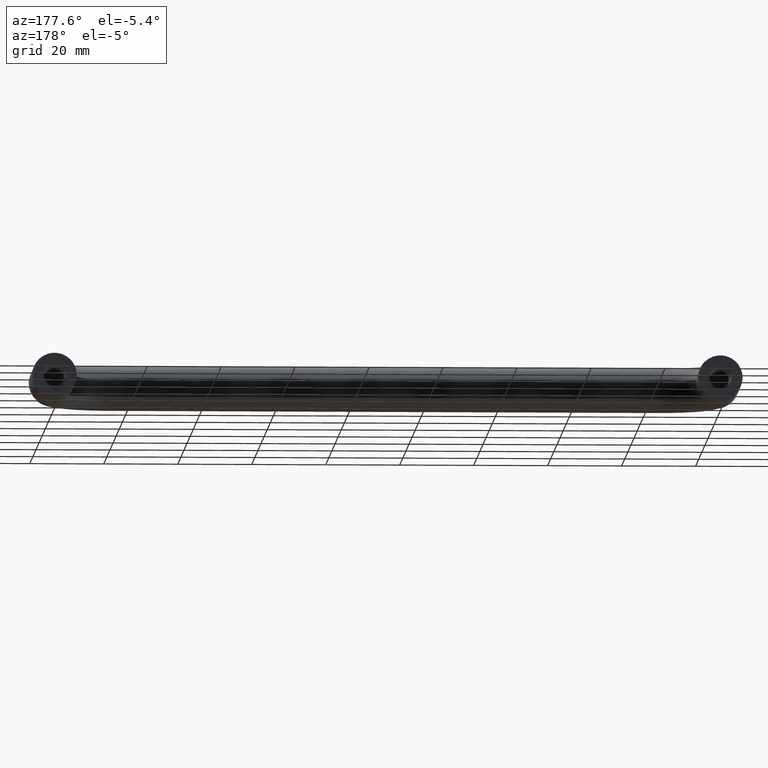
[diagram: clean part render]
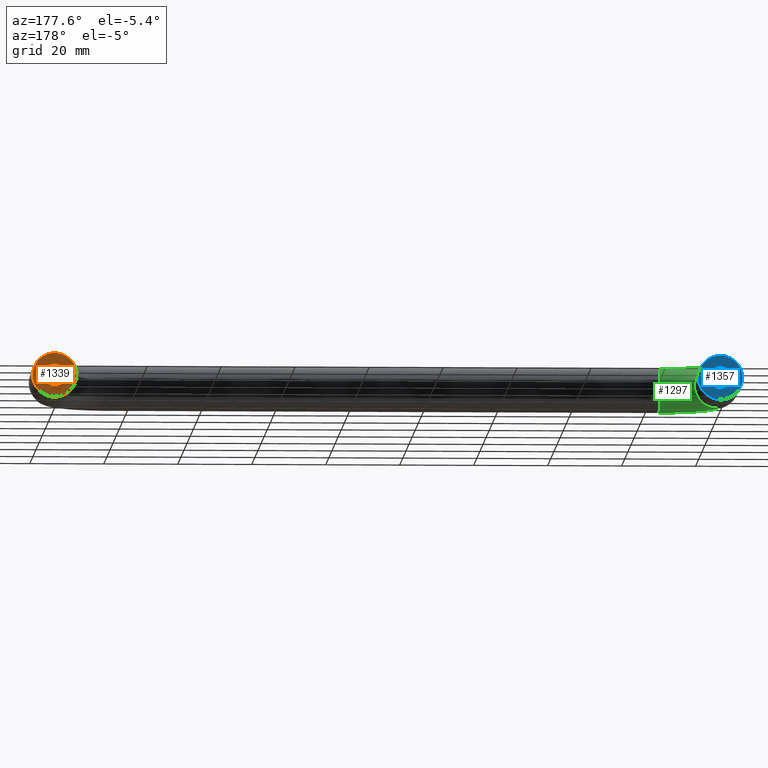
[diagram: same view with three faces highlighted in distinct colors, each labeled with its STEP entity id]
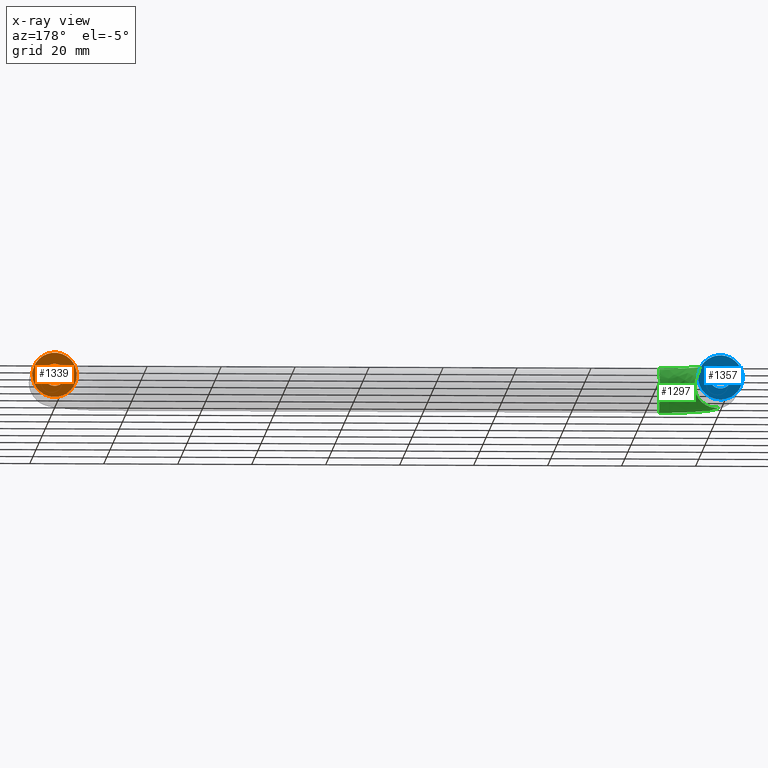
[diagram: x-ray of the same camera — body ghosted, the three highlighted faces saturated]
A machine part, auxiliary view with three faces highlighted in distinct colors.
The next image is the same camera in x-ray (body ghosted, the three faces saturated) — at least one of them is partly hidden behind the body in this view.
Their STEP definitions:

[orange] entity #1339 — the highlighted face is a freeform B-spline surface patch.
#261=CARTESIAN_POINT('',(177.009247998832790,-5.551115E-017,0.235377287592844));
#262=VERTEX_POINT('',#261);
#268=CARTESIAN_POINT('',(180.0,0.0,3.0));
#269=VERTEX_POINT('',#268);
#270=CARTESIAN_POINT('',(180.0,0.0,3.0));
#271=CARTESIAN_POINT('',(177.226828525786830,0.0,3.0));
#272=CARTESIAN_POINT('',(177.009247998832820,-5.551115E-017,0.235377287592844));
#280=(BOUNDED_CURVE()B_SPLINE_CURVE(2,(#270,#271,#272),.UNSPECIFIED.,.F.,.U.)B_SPLINE_CURVE_WITH_KNOTS((3,3),(0.0,0.236331300585845),.UNSPECIFIED.)CURVE()GEOMETRIC_REPRESENTATION_ITEM()RATIONAL_B_SPLINE_CURVE((1.0,0.723120658660169,0.969723356073894))REPRESENTATION_ITEM(''));
#281=EDGE_CURVE('',#269,#262,#280,.T.);
#283=CARTESIAN_POINT('',(182.990752001167210,-5.551115E-017,-0.235377287592843));
#284=VERTEX_POINT('',#283);
#285=CARTESIAN_POINT('',(182.990752001167120,-5.551115E-017,-0.235377287592843));
#286=CARTESIAN_POINT('',(182.999999999999970,0.0,-0.117870321434216));
#287=CARTESIAN_POINT('',(183.0,0.0,0.0));
#288=CARTESIAN_POINT('',(182.999999999999970,0.0,3.0));
#289=CARTESIAN_POINT('',(180.0,0.0,3.0));
#297=(BOUNDED_CURVE()B_SPLINE_CURVE(2,(#285,#286,#287,#288,#289),.UNSPECIFIED.,.F.,.U.)B_SPLINE_CURVE_WITH_KNOTS((3,2,3),(0.736331300585845,0.750000000000000,1.0),.UNSPECIFIED.)CURVE()GEOMETRIC_REPRESENTATION_ITEM()RATIONAL_B_SPLINE_CURVE((0.969723356073894,0.983986122526379,1.0,0.707106781186548,1.0))REPRESENTATION_ITEM(''));
#298=EDGE_CURVE('',#284,#269,#297,.T.);
#374=CARTESIAN_POINT('',(180.0,0.0,-3.0));
#375=VERTEX_POINT('',#374);
#376=CARTESIAN_POINT('',(180.0,0.0,-3.0));
#377=CARTESIAN_POINT('',(182.773171474213170,0.0,-3.000000000000000));
#378=CARTESIAN_POINT('',(182.990752001167180,-5.551115E-017,-0.235377287592843));
#386=(BOUNDED_CURVE()B_SPLINE_CURVE(2,(#376,#377,#378),.UNSPECIFIED.,.F.,.U.)B_SPLINE_CURVE_WITH_KNOTS((3,3),(0.500000000000000,0.736331300585846),.UNSPECIFIED.)CURVE()GEOMETRIC_REPRESENTATION_ITEM()RATIONAL_B_SPLINE_CURVE((1.0,0.723120658660168,0.969723356073895))REPRESENTATION_ITEM(''));
#387=EDGE_CURVE('',#375,#284,#386,.T.);
#389=CARTESIAN_POINT('',(177.009247998832820,-5.551115E-017,0.235377287592844));
#390=CARTESIAN_POINT('',(176.999999999999970,0.0,0.117870321434217));
#391=CARTESIAN_POINT('',(177.0,0.0,0.0));
#392=CARTESIAN_POINT('',(176.999999999999970,0.0,-3.0));
#393=CARTESIAN_POINT('',(180.0,0.0,-3.0));
#401=(BOUNDED_CURVE()B_SPLINE_CURVE(2,(#389,#390,#391,#392,#393),.UNSPECIFIED.,.F.,.U.)B_SPLINE_CURVE_WITH_KNOTS((3,2,3),(0.236331300585845,0.250000000000000,0.500000000000000),.UNSPECIFIED.)CURVE()GEOMETRIC_REPRESENTATION_ITEM()RATIONAL_B_SPLINE_CURVE((0.969723356073894,0.983986122526379,1.0,0.707106781186548,1.0))REPRESENTATION_ITEM(''));
#402=EDGE_CURVE('',#262,#375,#401,.T.);
#475=CARTESIAN_POINT('',(175.794545023095310,1.845746E-014,4.279503293283767));
#476=VERTEX_POINT('',#475);
#482=CARTESIAN_POINT('',(174.0,2.081668E-014,0.0));
#483=VERTEX_POINT('',#482);
#484=CARTESIAN_POINT('',(174.0,2.081668E-014,0.0));
#485=CARTESIAN_POINT('',(174.000000000000060,2.081668E-014,2.516009814353894));
#486=CARTESIAN_POINT('',(175.794545023095310,1.845746E-014,4.279503293283766));
#494=(BOUNDED_CURVE()B_SPLINE_CURVE(2,(#484,#485,#486),.UNSPECIFIED.,.F.,.U.)B_SPLINE_CURVE_WITH_KNOTS((3,3),(0.500000000000000,0.626316800529167),.UNSPECIFIED.)CURVE()GEOMETRIC_REPRESENTATION_ITEM()RATIONAL_B_SPLINE_CURVE((1.0,0.852010662811182,0.853569642311352))REPRESENTATION_ITEM(''));
#495=EDGE_CURVE('',#483,#476,#494,.T.);
#497=CARTESIAN_POINT('',(183.953816416641500,2.091423E-014,-4.513018473648650));
#498=VERTEX_POINT('',#497);
#499=CARTESIAN_POINT('',(183.953816416641700,2.081668E-014,-4.513018473648772));
#500=CARTESIAN_POINT('',(182.256525902557140,2.081668E-014,-6.0));
#501=CARTESIAN_POINT('',(180.0,2.081668E-014,-6.0));
#502=CARTESIAN_POINT('',(174.000000000000030,2.081668E-014,-6.0));
#503=CARTESIAN_POINT('',(174.0,2.081668E-014,0.0));
#511=(BOUNDED_CURVE()B_SPLINE_CURVE(2,(#499,#500,#501,#502,#503),.UNSPECIFIED.,.F.,.U.)B_SPLINE_CURVE_WITH_KNOTS((3,2,3),(0.134954754092844,0.250000000000000,0.500000000000000),.UNSPECIFIED.)CURVE()GEOMETRIC_REPRESENTATION_ITEM()RATIONAL_B_SPLINE_CURVE((0.854482186660549,0.865216110468272,1.0,0.707106781186548,1.0))REPRESENTATION_ITEM(''));
#512=EDGE_CURVE('',#498,#483,#511,.T.);
#560=CARTESIAN_POINT('',(186.0,2.081668E-014,0.0));
#561=VERTEX_POINT('',#560);
#562=CARTESIAN_POINT('',(186.0,2.081668E-014,0.0));
#563=CARTESIAN_POINT('',(185.999999999999970,2.081668E-014,-2.720374749590635));
#564=CARTESIAN_POINT('',(183.953816416641700,2.081668E-014,-4.513018473648772));
#572=(BOUNDED_CURVE()B_SPLINE_CURVE(2,(#562,#563,#564),.UNSPECIFIED.,.F.,.U.)B_SPLINE_CURVE_WITH_KNOTS((3,3),(0.0,0.134954754092844),.UNSPECIFIED.)CURVE()GEOMETRIC_REPRESENTATION_ITEM()RATIONAL_B_SPLINE_CURVE((1.0,0.841890670718275,0.854482186660549))REPRESENTATION_ITEM(''));
#573=EDGE_CURVE('',#561,#498,#572,.T.);
#575=CARTESIAN_POINT('',(175.794545023095310,1.845746E-014,4.279503293283766));
#576=CARTESIAN_POINT('',(177.545336188006390,2.081668E-014,6.0));
#577=CARTESIAN_POINT('',(180.0,2.081668E-014,6.0));
#578=CARTESIAN_POINT('',(186.000000000000090,2.081668E-014,6.0));
#579=CARTESIAN_POINT('',(186.0,2.081668E-014,0.0));
#587=(BOUNDED_CURVE()B_SPLINE_CURVE(2,(#575,#576,#577,#578,#579),.UNSPECIFIED.,.F.,.U.)B_SPLINE_CURVE_WITH_KNOTS((3,2,3),(0.626316800529167,0.750000000000000,1.0),.UNSPECIFIED.)CURVE()GEOMETRIC_REPRESENTATION_ITEM()RATIONAL_B_SPLINE_CURVE((0.853569642311352,0.855096118375365,1.0,0.707106781186548,1.0))REPRESENTATION_ITEM(''));
#588=EDGE_CURVE('',#476,#561,#587,.T.);
#1322=CARTESIAN_POINT('',(173.400600023258310,2.081668E-014,-6.596097615333159));
#1323=CARTESIAN_POINT('',(186.599400298606810,2.081668E-014,-6.596097615333159));
#1324=CARTESIAN_POINT('',(173.400600023258310,2.081668E-014,6.599137094588837));
#1325=CARTESIAN_POINT('',(186.599400298606810,2.081668E-014,6.599137094588837));
#1326=B_SPLINE_SURFACE_WITH_KNOTS('',1,1,((#1322,#1324),(#1323,#1325)),.UNSPECIFIED.,.F.,.F.,.U.,(2,2),(2,2),(0.0,13.198800275348420),(0.0,13.195234709922000),.UNSPECIFIED.);
#1327=ORIENTED_EDGE('',*,*,#573,.T.);
#1328=ORIENTED_EDGE('',*,*,#512,.T.);
#1329=ORIENTED_EDGE('',*,*,#495,.T.);
#1330=ORIENTED_EDGE('',*,*,#588,.T.);
#1331=EDGE_LOOP('',(#1327,#1328,#1329,#1330));
#1332=FACE_OUTER_BOUND('',#1331,.T.);
#1333=ORIENTED_EDGE('',*,*,#387,.T.);
#1334=ORIENTED_EDGE('',*,*,#298,.T.);
#1335=ORIENTED_EDGE('',*,*,#281,.T.);
#1336=ORIENTED_EDGE('',*,*,#402,.T.);
#1337=EDGE_LOOP('',(#1333,#1334,#1335,#1336));
#1338=FACE_BOUND('',#1337,.T.);
#1339=ADVANCED_FACE('',(#1332,#1338),#1326,.F.);

[blue] entity #1357 — the highlighted face is a freeform B-spline surface patch.
#79=CARTESIAN_POINT('',(-2.990752001167170,-5.551115E-017,0.235377287592843));
#80=VERTEX_POINT('',#79);
#86=CARTESIAN_POINT('',(0.0,0.0,3.0));
#87=VERTEX_POINT('',#86);
#88=CARTESIAN_POINT('',(0.0,0.0,3.0));
#89=CARTESIAN_POINT('',(-2.773171474213213,0.0,3.000000000000000));
#90=CARTESIAN_POINT('',(-2.990752001167170,-5.551115E-017,0.235377287592843));
#98=(BOUNDED_CURVE()B_SPLINE_CURVE(2,(#88,#89,#90),.UNSPECIFIED.,.F.,.U.)B_SPLINE_CURVE_WITH_KNOTS((3,3),(0.0,0.236331300585845),.UNSPECIFIED.)CURVE()GEOMETRIC_REPRESENTATION_ITEM()RATIONAL_B_SPLINE_CURVE((1.0,0.723120658660169,0.969723356073894))REPRESENTATION_ITEM(''));
#99=EDGE_CURVE('',#87,#80,#98,.T.);
#101=CARTESIAN_POINT('',(2.990752001167170,-5.551115E-017,-0.235377287592843));
#102=VERTEX_POINT('',#101);
#103=CARTESIAN_POINT('',(2.990752001167170,-5.551115E-017,-0.235377287592843));
#104=CARTESIAN_POINT('',(2.999999999999999,0.0,-0.117870321434216));
#105=CARTESIAN_POINT('',(3.0,0.0,0.0));
#106=CARTESIAN_POINT('',(3.0,0.0,3.0));
#107=CARTESIAN_POINT('',(0.0,0.0,3.0));
#115=(BOUNDED_CURVE()B_SPLINE_CURVE(2,(#103,#104,#105,#106,#107),.UNSPECIFIED.,.F.,.U.)B_SPLINE_CURVE_WITH_KNOTS((3,2,3),(0.736331300585845,0.750000000000000,1.0),.UNSPECIFIED.)CURVE()GEOMETRIC_REPRESENTATION_ITEM()RATIONAL_B_SPLINE_CURVE((0.969723356073894,0.983986122526379,1.0,0.707106781186548,1.0))REPRESENTATION_ITEM(''));
#116=EDGE_CURVE('',#102,#87,#115,.T.);
#192=CARTESIAN_POINT('',(0.0,0.0,-3.0));
#193=VERTEX_POINT('',#192);
#194=CARTESIAN_POINT('',(0.0,0.0,-3.0));
#195=CARTESIAN_POINT('',(2.773171474213222,0.0,-3.000000000000000));
#196=CARTESIAN_POINT('',(2.990752001167170,-5.551115E-017,-0.235377287592843));
#204=(BOUNDED_CURVE()B_SPLINE_CURVE(2,(#194,#195,#196),.UNSPECIFIED.,.F.,.U.)B_SPLINE_CURVE_WITH_KNOTS((3,3),(0.500000000000000,0.736331300585846),.UNSPECIFIED.)CURVE()GEOMETRIC_REPRESENTATION_ITEM()RATIONAL_B_SPLINE_CURVE((1.0,0.723120658660168,0.969723356073895))REPRESENTATION_ITEM(''));
#205=EDGE_CURVE('',#193,#102,#204,.T.);
#207=CARTESIAN_POINT('',(-2.990752001167170,-5.551115E-017,0.235377287592843));
#208=CARTESIAN_POINT('',(-3.000000000000000,0.0,0.117870321434216));
#209=CARTESIAN_POINT('',(-3.0,0.0,0.0));
#210=CARTESIAN_POINT('',(-3.0,0.0,-3.0));
#211=CARTESIAN_POINT('',(0.0,0.0,-3.0));
#219=(BOUNDED_CURVE()B_SPLINE_CURVE(2,(#207,#208,#209,#210,#211),.UNSPECIFIED.,.F.,.U.)B_SPLINE_CURVE_WITH_KNOTS((3,2,3),(0.236331300585845,0.250000000000000,0.500000000000000),.UNSPECIFIED.)CURVE()GEOMETRIC_REPRESENTATION_ITEM()RATIONAL_B_SPLINE_CURVE((0.969723356073894,0.983986122526379,1.0,0.707106781186548,1.0))REPRESENTATION_ITEM(''));
#220=EDGE_CURVE('',#80,#193,#219,.T.);
#909=CARTESIAN_POINT('',(2.905309782396585,0.0,-5.249683330279442));
#910=VERTEX_POINT('',#909);
#916=CARTESIAN_POINT('',(6.0,0.0,0.0));
#917=VERTEX_POINT('',#916);
#918=CARTESIAN_POINT('',(2.905309782396584,0.0,-5.249683330279442));
#919=CARTESIAN_POINT('',(6.000000000000001,0.0,-3.537002165154155));
#920=CARTESIAN_POINT('',(6.0,0.0,0.0));
#928=(BOUNDED_CURVE()B_SPLINE_CURVE(2,(#918,#919,#920),.UNSPECIFIED.,.F.,.U.)B_SPLINE_CURVE_WITH_KNOTS((3,3),(0.332484036553738,0.500000000000000),.UNSPECIFIED.)CURVE()GEOMETRIC_REPRESENTATION_ITEM()RATIONAL_B_SPLINE_CURVE((0.870495338620754,0.803742841054351,1.0))REPRESENTATION_ITEM(''));
#929=EDGE_CURVE('',#910,#917,#928,.T.);
#931=CARTESIAN_POINT('',(4.423666584787512,1.110223E-016,4.053538447655331));
#932=VERTEX_POINT('',#931);
#933=CARTESIAN_POINT('',(6.0,0.0,0.0));
#934=CARTESIAN_POINT('',(6.000000000000001,0.0,2.333270206611333));
#935=CARTESIAN_POINT('',(4.423666584787512,1.110223E-016,4.053538447655331));
#943=(BOUNDED_CURVE()B_SPLINE_CURVE(2,(#933,#934,#935),.UNSPECIFIED.,.F.,.U.)B_SPLINE_CURVE_WITH_KNOTS((3,3),(0.500000000000000,0.618415113599380),.UNSPECIFIED.)CURVE()GEOMETRIC_REPRESENTATION_ITEM()RATIONAL_B_SPLINE_CURVE((1.0,0.861268064886868,0.853959792624003))REPRESENTATION_ITEM(''));
#944=EDGE_CURVE('',#917,#932,#943,.T.);
#1054=CARTESIAN_POINT('',(-6.0,0.0,0.0));
#1055=VERTEX_POINT('',#1054);
#1056=CARTESIAN_POINT('',(4.423666584787512,1.110223E-016,4.053538447655331));
#1057=CARTESIAN_POINT('',(2.640065450281171,0.0,6.000000000000001));
#1058=CARTESIAN_POINT('',(0.0,0.0,6.0));
#1059=CARTESIAN_POINT('',(-6.0,0.0,6.0));
#1060=CARTESIAN_POINT('',(-6.0,0.0,0.0));
#1068=(BOUNDED_CURVE()B_SPLINE_CURVE(2,(#1056,#1057,#1058,#1059,#1060),.UNSPECIFIED.,.F.,.U.)B_SPLINE_CURVE_WITH_KNOTS((3,2,3),(0.618415113599380,0.750000000000000,1.0),.UNSPECIFIED.)CURVE()GEOMETRIC_REPRESENTATION_ITEM()RATIONAL_B_SPLINE_CURVE((0.853959792624003,0.845838716299679,1.0,0.707106781186548,1.0))REPRESENTATION_ITEM(''));
#1069=EDGE_CURVE('',#932,#1055,#1068,.T.);
#1071=CARTESIAN_POINT('',(-6.0,0.0,0.0));
#1072=CARTESIAN_POINT('',(-6.0,0.0,-6.0));
#1073=CARTESIAN_POINT('',(0.0,0.0,-6.0));
#1074=CARTESIAN_POINT('',(1.549542167775759,0.0,-6.0));
#1075=CARTESIAN_POINT('',(2.905309782396584,0.0,-5.249683330279442));
#1083=(BOUNDED_CURVE()B_SPLINE_CURVE(2,(#1071,#1072,#1073,#1074,#1075),.UNSPECIFIED.,.F.,.U.)B_SPLINE_CURVE_WITH_KNOTS((3,2,3),(0.0,0.250000000000000,0.332484036553738),.UNSPECIFIED.)CURVE()GEOMETRIC_REPRESENTATION_ITEM()RATIONAL_B_SPLINE_CURVE((1.0,0.707106781186548,1.0,0.903363940132197,0.870495338620754))REPRESENTATION_ITEM(''));
#1084=EDGE_CURVE('',#1055,#910,#1083,.T.);
#1340=CARTESIAN_POINT('',(6.599399976741671,0.0,-6.597882586610280));
#1341=CARTESIAN_POINT('',(-6.599400298606753,0.0,-6.597882586610280));
#1342=CARTESIAN_POINT('',(6.599399976741671,0.0,6.596672052037678));
#1343=CARTESIAN_POINT('',(-6.599400298606753,0.0,6.596672052037678));
#1344=B_SPLINE_SURFACE_WITH_KNOTS('',1,1,((#1340,#1342),(#1341,#1343)),.UNSPECIFIED.,.F.,.F.,.U.,(2,2),(2,2),(0.0,13.198800275348420),(0.0,13.194554638647960),.UNSPECIFIED.);
#1345=ORIENTED_EDGE('',*,*,#1069,.F.);
#1346=ORIENTED_EDGE('',*,*,#944,.F.);
#1347=ORIENTED_EDGE('',*,*,#929,.F.);
#1348=ORIENTED_EDGE('',*,*,#1084,.F.);
#1349=EDGE_LOOP('',(#1345,#1346,#1347,#1348));
#1350=FACE_OUTER_BOUND('',#1349,.T.);
#1351=ORIENTED_EDGE('',*,*,#205,.T.);
#1352=ORIENTED_EDGE('',*,*,#116,.T.);
#1353=ORIENTED_EDGE('',*,*,#99,.T.);
#1354=ORIENTED_EDGE('',*,*,#220,.T.);
#1355=EDGE_LOOP('',(#1351,#1352,#1353,#1354));
#1356=FACE_BOUND('',#1355,.T.);
#1357=ADVANCED_FACE('',(#1350,#1356),#1344,.T.);

[green] entity #1297 — the highlighted face is a freeform B-spline surface patch.
#669=CARTESIAN_POINT('',(14.999999999875209,-33.626367044269713,2.669095138086312));
#670=VERTEX_POINT('',#669);
#676=CARTESIAN_POINT('',(14.999999998819630,-38.924603759046533,5.999526265202118));
#677=VERTEX_POINT('',#676);
#678=CARTESIAN_POINT('',(14.999999999875204,-33.626367044269713,2.669095138086313));
#679=CARTESIAN_POINT('',(14.999999999550189,-35.257710391551527,5.953444296438446));
#680=CARTESIAN_POINT('',(14.999999998819625,-38.924603759046526,5.999526265202118));
#688=(BOUNDED_CURVE()B_SPLINE_CURVE(2,(#678,#679,#680),.UNSPECIFIED.,.F.,.U.)B_SPLINE_CURVE_WITH_KNOTS((3,3),(0.575619190622085,0.747784295824798),.UNSPECIFIED.)CURVE()GEOMETRIC_REPRESENTATION_ITEM()RATIONAL_B_SPLINE_CURVE((0.876408099968847,0.796725658680578,0.994854295420916))REPRESENTATION_ITEM(''));
#689=EDGE_CURVE('',#670,#677,#688,.T.);
#708=CARTESIAN_POINT('',(14.999999999448599,-39.418399512570531,-5.985394042824643));
#709=VERTEX_POINT('',#708);
#723=CARTESIAN_POINT('',(15.0,-34.869873054902463,-4.352246709158238));
#724=VERTEX_POINT('',#723);
#725=CARTESIAN_POINT('',(14.999999999448598,-39.418399512570531,-5.985394042824644));
#726=CARTESIAN_POINT('',(15.0,-39.209454698377556,-6.0));
#727=CARTESIAN_POINT('',(15.0,-39.0,-6.0));
#728=CARTESIAN_POINT('',(15.000000000000004,-36.606243537657747,-6.000000000000001));
#729=CARTESIAN_POINT('',(15.000000000000005,-34.869873054902463,-4.352246709158238));
#737=(BOUNDED_CURVE()B_SPLINE_CURVE(2,(#725,#726,#727,#728,#729),.UNSPECIFIED.,.F.,.U.)B_SPLINE_CURVE_WITH_KNOTS((3,2,3),(0.237833686355959,0.250000000000000,0.371049491355408),.UNSPECIFIED.)CURVE()GEOMETRIC_REPRESENTATION_ITEM()RATIONAL_B_SPLINE_CURVE((0.972879876008094,0.985746276942811,1.0,0.858181699364734,0.853699663983766))REPRESENTATION_ITEM(''));
#738=EDGE_CURVE('',#709,#724,#737,.T.);
#838=CARTESIAN_POINT('',(15.0,-33.0,0.0));
#839=VERTEX_POINT('',#838);
#840=CARTESIAN_POINT('',(15.000000000000004,-34.869873054902456,-4.352246709158237));
#841=CARTESIAN_POINT('',(15.0,-33.0,-2.577804267138424));
#842=CARTESIAN_POINT('',(15.0,-33.0,0.0));
#850=(BOUNDED_CURVE()B_SPLINE_CURVE(2,(#840,#841,#842),.UNSPECIFIED.,.F.,.U.)B_SPLINE_CURVE_WITH_KNOTS((3,3),(0.371049491355407,0.500000000000000),.UNSPECIFIED.)CURVE()GEOMETRIC_REPRESENTATION_ITEM()RATIONAL_B_SPLINE_CURVE((0.853699663983766,0.848925081821813,1.0))REPRESENTATION_ITEM(''));
#851=EDGE_CURVE('',#724,#839,#850,.T.);
#853=CARTESIAN_POINT('',(15.0,-33.0,0.0));
#854=CARTESIAN_POINT('',(15.0,-33.0,1.408043576813630));
#855=CARTESIAN_POINT('',(14.999999999875211,-33.626367044269706,2.669095138086313));
#863=(BOUNDED_CURVE()B_SPLINE_CURVE(2,(#853,#854,#855),.UNSPECIFIED.,.F.,.U.)B_SPLINE_CURVE_WITH_KNOTS((3,3),(0.500000000000000,0.575619190622085),.UNSPECIFIED.)CURVE()GEOMETRIC_REPRESENTATION_ITEM()RATIONAL_B_SPLINE_CURVE((1.0,0.911406607418518,0.876408099968846))REPRESENTATION_ITEM(''));
#864=EDGE_CURVE('',#839,#670,#863,.T.);
#892=CARTESIAN_POINT('',(2.905318393535143,-24.0,-5.249678564653877));
#893=VERTEX_POINT('',#892);
#894=CARTESIAN_POINT('',(6.000000000000003,-24.0,0.0));
#895=VERTEX_POINT('',#894);
#896=CARTESIAN_POINT('',(2.905318393535143,-23.999999999999996,-5.249678564653877));
#897=CARTESIAN_POINT('',(6.000000000000003,-23.999999999999996,-3.536995534121349));
#898=CARTESIAN_POINT('',(6.000000000000003,-24.0,0.0));
#906=(BOUNDED_CURVE()B_SPLINE_CURVE(2,(#896,#897,#898),.UNSPECIFIED.,.F.,.U.)B_SPLINE_CURVE_WITH_KNOTS((3,3),(0.332484288971161,0.500000000000000),.UNSPECIFIED.)CURVE()GEOMETRIC_REPRESENTATION_ITEM()RATIONAL_B_SPLINE_CURVE((0.870495137452543,0.803743136779756,1.0))REPRESENTATION_ITEM(''));
#907=EDGE_CURVE('',#893,#895,#906,.T.);
#946=CARTESIAN_POINT('',(4.423666547451096,-24.000000000116419,4.053538488362753));
#947=VERTEX_POINT('',#946);
#953=CARTESIAN_POINT('',(6.000000000000003,-24.0,0.0));
#954=CARTESIAN_POINT('',(6.000000000000002,-24.000000000000004,2.333270238378407));
#955=CARTESIAN_POINT('',(4.423666547451097,-24.000000000116430,4.053538488362754));
#963=(BOUNDED_CURVE()B_SPLINE_CURVE(2,(#953,#954,#955),.UNSPECIFIED.,.F.,.U.)B_SPLINE_CURVE_WITH_KNOTS((3,3),(0.500000000000000,0.618415114987918),.UNSPECIFIED.)CURVE()GEOMETRIC_REPRESENTATION_ITEM()RATIONAL_B_SPLINE_CURVE((1.0,0.861268063260095,0.853959792452609))REPRESENTATION_ITEM(''));
#964=EDGE_CURVE('',#895,#947,#963,.T.);
#991=CARTESIAN_POINT('',(-0.418399512824394,-24.000000000620791,-5.985394042806897));
#992=VERTEX_POINT('',#991);
#993=CARTESIAN_POINT('',(-0.418399512824394,-24.000000000620787,-5.985394042806897));
#994=CARTESIAN_POINT('',(-0.209454698632360,-24.000000000000004,-6.0));
#995=CARTESIAN_POINT('',(2.939055E-015,-24.0,-6.0));
#996=CARTESIAN_POINT('',(1.549547416940609,-24.0,-6.000000000000001));
#997=CARTESIAN_POINT('',(2.905318393535143,-24.000000000000004,-5.249678564653877));
#1005=(BOUNDED_CURVE()B_SPLINE_CURVE(2,(#993,#994,#995,#996,#997),.UNSPECIFIED.,.F.,.U.)B_SPLINE_CURVE_WITH_KNOTS((3,2,3),(0.237833686341369,0.250000000000000,0.332484288971160),.UNSPECIFIED.)CURVE()GEOMETRIC_REPRESENTATION_ITEM()RATIONAL_B_SPLINE_CURVE((0.972879875977236,0.985746276925718,1.0,0.903363644406792,0.870495137452543))REPRESENTATION_ITEM(''));
#1006=EDGE_CURVE('',#992,#893,#1005,.T.);
#1023=CARTESIAN_POINT('',(0.075396239566499,-24.000000000438011,5.999526265219547));
#1024=VERTEX_POINT('',#1023);
#1040=CARTESIAN_POINT('',(4.423666547451097,-24.000000000116430,4.053538488362754));
#1041=CARTESIAN_POINT('',(2.670382202534906,-24.000000000246160,5.966914993032725));
#1042=CARTESIAN_POINT('',(0.075396239566499,-24.000000000438011,5.999526265219547));
#1050=(BOUNDED_CURVE()B_SPLINE_CURVE(2,(#1040,#1041,#1042),.UNSPECIFIED.,.F.,.U.)B_SPLINE_CURVE_WITH_KNOTS((3,3),(0.618415114987918,0.747784295906111),.UNSPECIFIED.)CURVE()GEOMETRIC_REPRESENTATION_ITEM()RATIONAL_B_SPLINE_CURVE((0.853959792452609,0.845975465380940,0.994854295608066))REPRESENTATION_ITEM(''));
#1051=EDGE_CURVE('',#947,#1024,#1050,.T.);
#1225=CARTESIAN_POINT('',(0.075396239566499,-24.000000000438007,5.999526265219546));
#1226=CARTESIAN_POINT('',(0.075396240176143,-38.924603758339131,5.999526265222894));
#1227=CARTESIAN_POINT('',(14.999999998819632,-38.924603759046526,5.999526265202118));
#1235=(BOUNDED_CURVE()B_SPLINE_CURVE(2,(#1225,#1226,#1227),.UNSPECIFIED.,.F.,.U.)B_SPLINE_CURVE_WITH_KNOTS((3,3),(-1.747842683607926,-0.278273131109842),.UNSPECIFIED.)CURVE()GEOMETRIC_REPRESENTATION_ITEM()RATIONAL_B_SPLINE_CURVE((0.893710737941969,0.628668022929664,0.884455039398310))REPRESENTATION_ITEM(''));
#1236=EDGE_CURVE('',#1024,#677,#1235,.T.);
#1240=CARTESIAN_POINT('',(-0.418399512824394,-24.000000000620787,-5.985394042806897));
#1241=CARTESIAN_POINT('',(-0.418399508211063,-39.418399508349829,-5.985394043042592));
#1242=CARTESIAN_POINT('',(14.999999999448606,-39.418399512570538,-5.985394042824643));
#1250=(BOUNDED_CURVE()B_SPLINE_CURVE(2,(#1240,#1241,#1242),.UNSPECIFIED.,.F.,.U.)B_SPLINE_CURVE_WITH_KNOTS((3,3),(-1.747842683585124,-0.278273131020266),.UNSPECIFIED.)CURVE()GEOMETRIC_REPRESENTATION_ITEM()RATIONAL_B_SPLINE_CURVE((0.873607430563128,0.614526639176238,0.864559931584812))REPRESENTATION_ITEM(''));
#1251=EDGE_CURVE('',#992,#709,#1250,.T.);
#1256=CARTESIAN_POINT('',(0.111136663809359,-22.967747138470866,5.999526265222896));
#1257=CARTESIAN_POINT('',(-1.075809718332357,-40.087857074436414,5.999526265222895));
#1258=CARTESIAN_POINT('',(16.043406238818967,-38.888085868730428,5.999526265222895));
#1259=CARTESIAN_POINT('',(6.096295672185008,-23.382701414939049,5.924130025922778));
#1260=CARTESIAN_POINT('',(5.386488657308915,-33.620715794384978,5.924130025922778));
#1261=CARTESIAN_POINT('',(15.623968427573633,-32.903239393707267,5.924130025922779));
#1262=CARTESIAN_POINT('',(6.021079986663216,-23.377486671216936,-0.075396239300116));
#1263=CARTESIAN_POINT('',(5.305276746031371,-33.701988566597805,-0.075396239300116));
#1264=CARTESIAN_POINT('',(15.629239516021315,-32.978451151612383,-0.075396239300116));
#1265=CARTESIAN_POINT('',(5.945864301141421,-23.372271927494822,-6.074922504523011));
#1266=CARTESIAN_POINT('',(5.224064834753819,-33.783261338810640,-6.074922504523011));
#1267=CARTESIAN_POINT('',(15.634510604468993,-33.053662909517492,-6.074922504523011));
#1268=CARTESIAN_POINT('',(-0.039294707234223,-22.957317651026646,-5.999526265222896));
#1269=CARTESIAN_POINT('',(-1.238233540887451,-40.250402618862097,-5.999526265222895));
#1270=CARTESIAN_POINT('',(16.053948415714327,-39.038509384540653,-5.999526265222895));
#1271=CARTESIAN_POINT('',(-0.210587221361740,-22.945441849370450,-5.997368459328780));
#1272=CARTESIAN_POINT('',(-1.423181565535869,-40.435489245220339,-5.997368459328780));
#1273=CARTESIAN_POINT('',(16.065952534085760,-39.209792954106518,-5.997368459328782));
#1274=CARTESIAN_POINT('',(-0.381476246979482,-22.933594021788547,-5.985394066133805));
#1275=CARTESIAN_POINT('',(-1.607693935402575,-40.620139890313247,-5.985394066133805));
#1276=CARTESIAN_POINT('',(16.077928376126145,-39.380673056232020,-5.985394066133806));
#1284=(BOUNDED_SURFACE()B_SPLINE_SURFACE(2,2,((#1256,#1259,#1262,#1265,#1268,#1271,#1274),(#1257,#1260,#1263,#1266,#1269,#1272,#1275),(#1258,#1261,#1264,#1267,#1270,#1273,#1276)),.UNSPECIFIED.,.F.,.F.,.U.)B_SPLINE_SURFACE_WITH_KNOTS((3,3),(3,2,2,3),(0.0,28.097866280938810),(0.0,9.941125496954284,19.882250993908571,20.279895634562891),.UNSPECIFIED.)GEOMETRIC_REPRESENTATION_ITEM()RATIONAL_B_SPLINE_SURFACE(((0.921487970695580,0.651590392860676,0.921487970695580,0.651590392860676,0.921487970695580,0.910692077877960,0.900759855662087),(0.601353110281207,0.425220862167464,0.601353110281207,0.425220862167464,0.601353110281207,0.594307827075570,0.587826165988871),(0.911307631818076,0.644391806205615,0.911307631818076,0.644391806205615,0.911307631818076,0.900631008975608,0.890808515145976)))REPRESENTATION_ITEM('')SURFACE());
#1285=ORIENTED_EDGE('',*,*,#851,.F.);
#1286=ORIENTED_EDGE('',*,*,#738,.F.);
#1287=ORIENTED_EDGE('',*,*,#1251,.F.);
#1288=ORIENTED_EDGE('',*,*,#1006,.T.);
#1289=ORIENTED_EDGE('',*,*,#907,.T.);
#1290=ORIENTED_EDGE('',*,*,#964,.T.);
#1291=ORIENTED_EDGE('',*,*,#1051,.T.);
#1292=ORIENTED_EDGE('',*,*,#1236,.T.);
#1293=ORIENTED_EDGE('',*,*,#689,.F.);
#1294=ORIENTED_EDGE('',*,*,#864,.F.);
#1295=EDGE_LOOP('',(#1285,#1286,#1287,#1288,#1289,#1290,#1291,#1292,#1293,#1294));
#1296=FACE_OUTER_BOUND('',#1295,.T.);
#1297=ADVANCED_FACE('',(#1296),#1284,.T.);